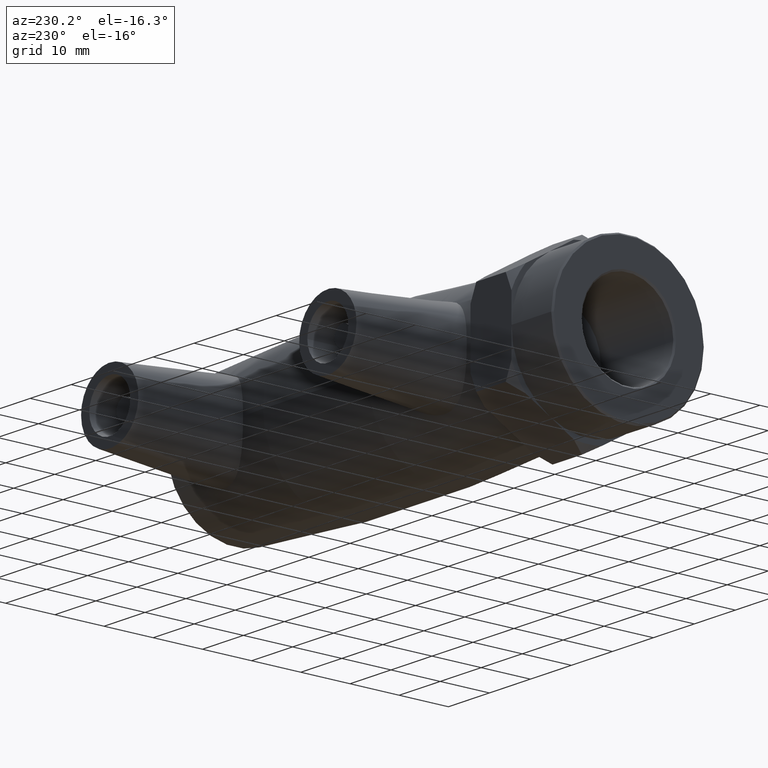
[diagram: clean part render]
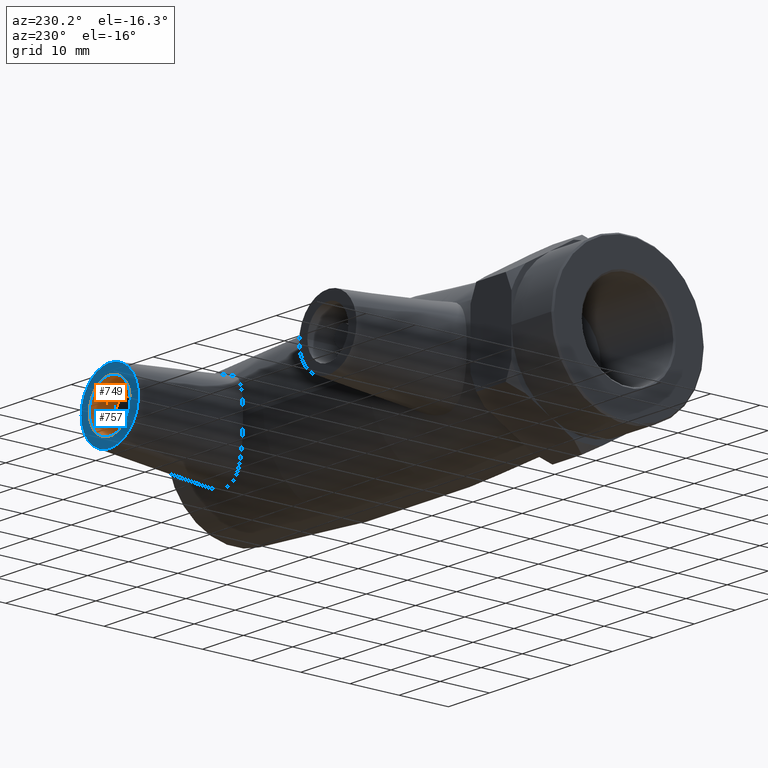
[diagram: same view with the hole feature highlighted: cylindrical wall and planar end face, labeled with their STEP entity ids]
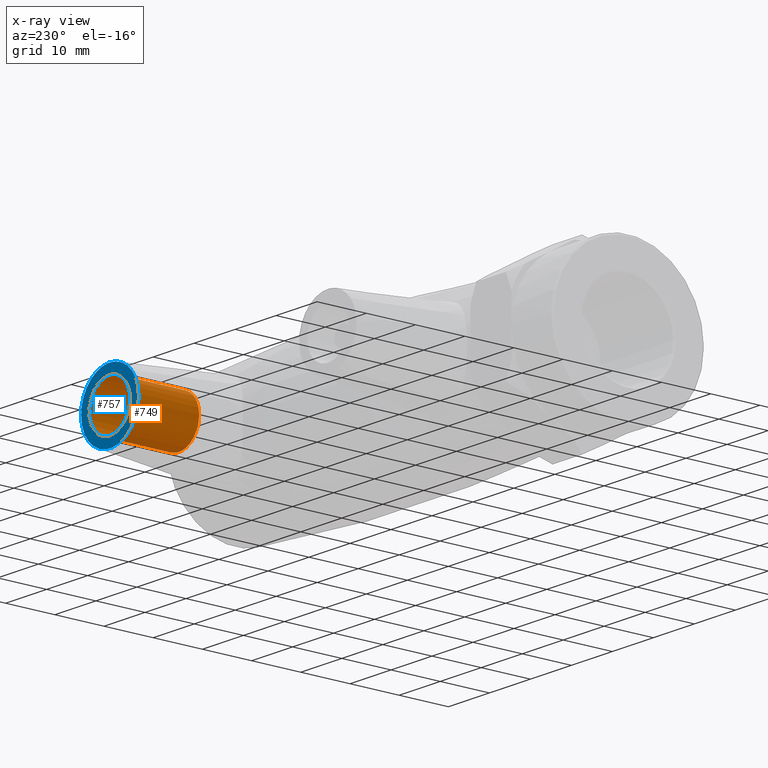
[diagram: x-ray of the same camera — body ghosted, the hole faces saturated]
A machine part, auxiliary view. The highlighted faces form one hole feature of diameter 10 mm: the cylindrical wall (entity #749, orange) and its adjacent planar end face (entity #757, blue) — they share a circular edge in the B-rep.
The next image is the same camera in x-ray (body ghosted, the hole faces saturated) — the bore reads through the body.
Wall:
#94=CYLINDRICAL_SURFACE('',#837,5.);
#135=FACE_BOUND('',#257,.T.);
#190=FACE_OUTER_BOUND('',#256,.T.);
#256=EDGE_LOOP('',(#657));
#257=EDGE_LOOP('',(#658));
#323=CIRCLE('',#838,5.);
#324=CIRCLE('',#839,5.);
#392=VERTEX_POINT('',#1314);
#393=VERTEX_POINT('',#1316);
#487=EDGE_CURVE('',#392,#392,#323,.T.);
#488=EDGE_CURVE('',#393,#393,#324,.T.);
#657=ORIENTED_EDGE('',*,*,#487,.F.);
#658=ORIENTED_EDGE('',*,*,#488,.F.);
#749=ADVANCED_FACE('',(#190,#135),#94,.F.);
#837=AXIS2_PLACEMENT_3D('',#1313,#1031,#1032);
#838=AXIS2_PLACEMENT_3D('',#1315,#1033,#1034);
#839=AXIS2_PLACEMENT_3D('',#1317,#1035,#1036);
#1031=DIRECTION('center_axis',(0.,1.,0.));
#1032=DIRECTION('ref_axis',(1.,0.,0.));
#1033=DIRECTION('center_axis',(0.,1.,0.));
#1034=DIRECTION('ref_axis',(1.,0.,0.));
#1035=DIRECTION('center_axis',(0.,-1.,0.));
#1036=DIRECTION('ref_axis',(1.,0.,0.));
#1313=CARTESIAN_POINT('Origin',(26.6,35.,0.));
#1314=CARTESIAN_POINT('',(21.6,21.,-6.12323399573677E-16));
#1315=CARTESIAN_POINT('Origin',(26.6,21.,0.));
#1316=CARTESIAN_POINT('',(21.6,35.,-6.12323399573677E-16));
#1317=CARTESIAN_POINT('Origin',(26.6,35.,0.));
End face:
#120=PLANE('',#853);
#142=FACE_BOUND('',#272,.T.);
#198=FACE_OUTER_BOUND('',#271,.T.);
#271=EDGE_LOOP('',(#672));
#272=EDGE_LOOP('',(#673));
#324=CIRCLE('',#839,5.);
#330=CIRCLE('',#852,7.);
#393=VERTEX_POINT('',#1316);
#399=VERTEX_POINT('',#1335);
#488=EDGE_CURVE('',#393,#393,#324,.T.);
#494=EDGE_CURVE('',#399,#399,#330,.T.);
#672=ORIENTED_EDGE('',*,*,#494,.T.);
#673=ORIENTED_EDGE('',*,*,#488,.T.);
#757=ADVANCED_FACE('',(#198,#142),#120,.F.);
#839=AXIS2_PLACEMENT_3D('',#1317,#1035,#1036);
#852=AXIS2_PLACEMENT_3D('',#1336,#1061,#1062);
#853=AXIS2_PLACEMENT_3D('',#1376,#1063,#1064);
#1035=DIRECTION('center_axis',(0.,-1.,0.));
#1036=DIRECTION('ref_axis',(1.,0.,0.));
#1061=DIRECTION('center_axis',(0.,1.,0.));
#1062=DIRECTION('ref_axis',(-1.,0.,0.));
#1063=DIRECTION('center_axis',(0.,-1.,0.));
#1064=DIRECTION('ref_axis',(0.,0.,1.));
#1316=CARTESIAN_POINT('',(21.6,35.,-6.12323399573677E-16));
#1317=CARTESIAN_POINT('Origin',(26.6,35.,0.));
#1335=CARTESIAN_POINT('',(33.6,35.,8.57252759403147E-16));
#1336=CARTESIAN_POINT('Origin',(26.6,35.,0.));
#1376=CARTESIAN_POINT('Origin',(26.6,35.,1.32169407693471E-16));